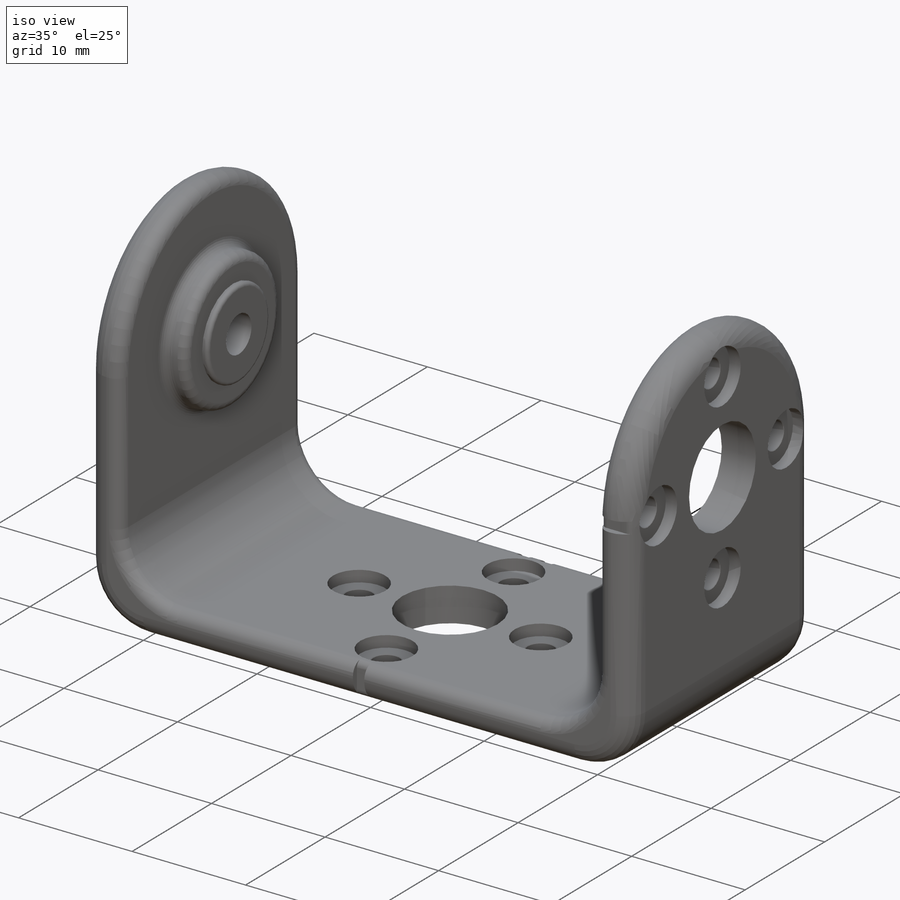
[diagram: iso view]
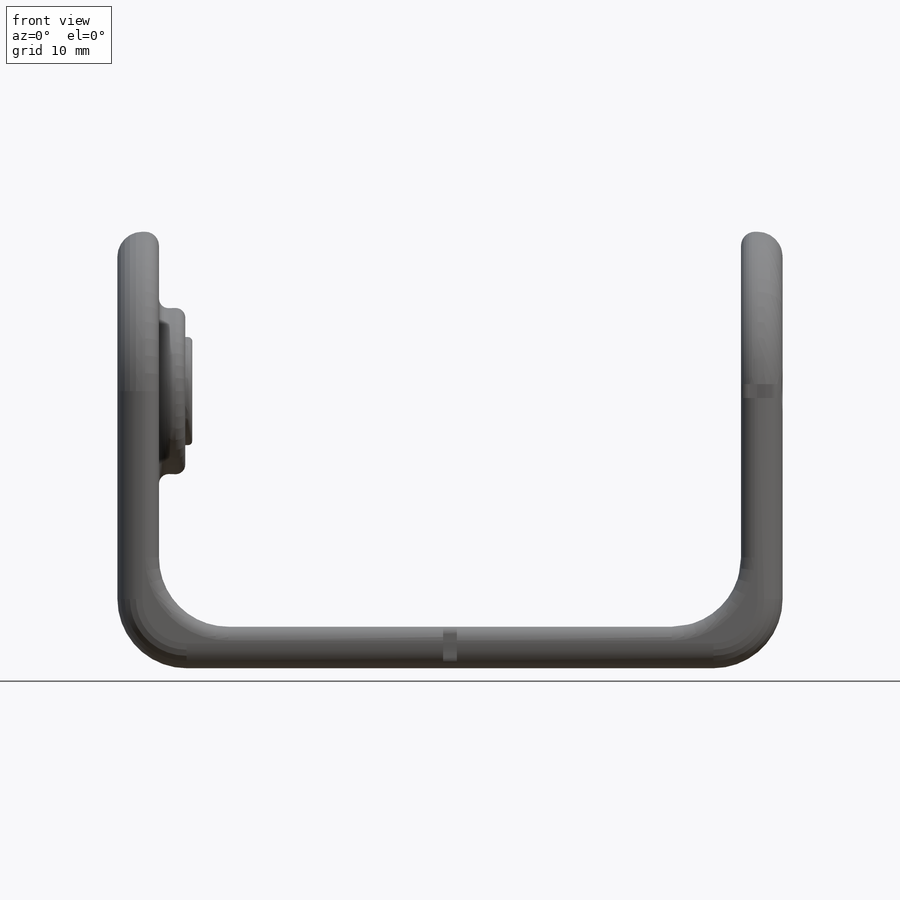
[diagram: front view]
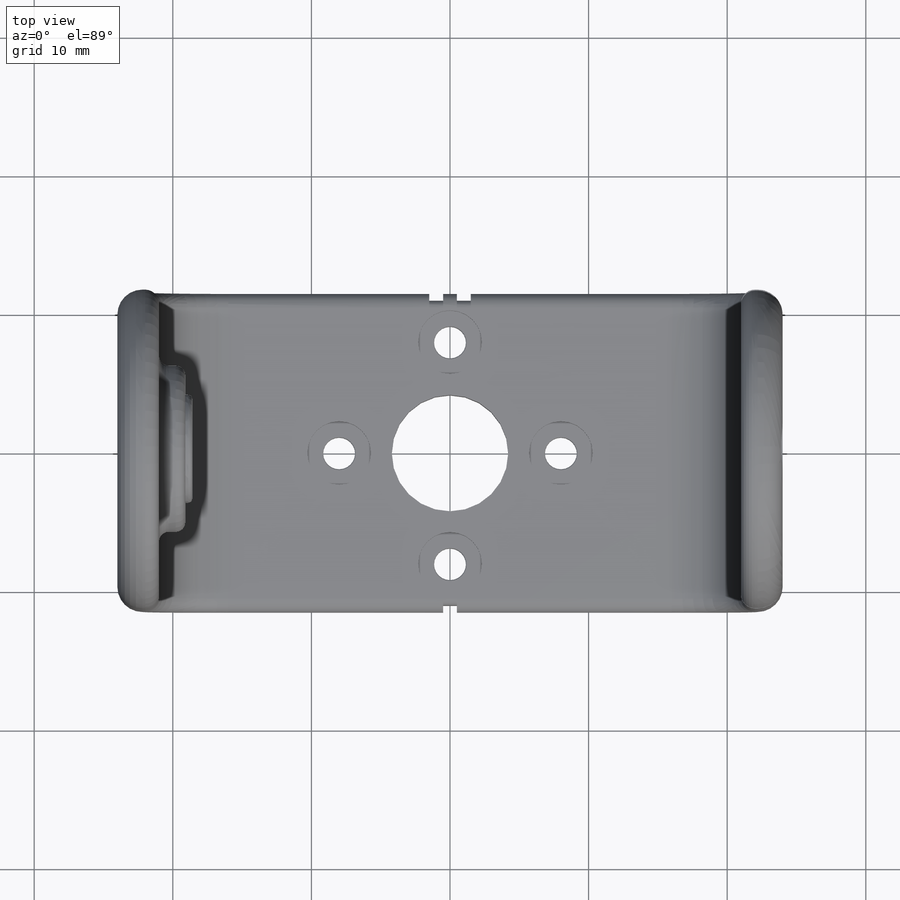
[diagram: top view]
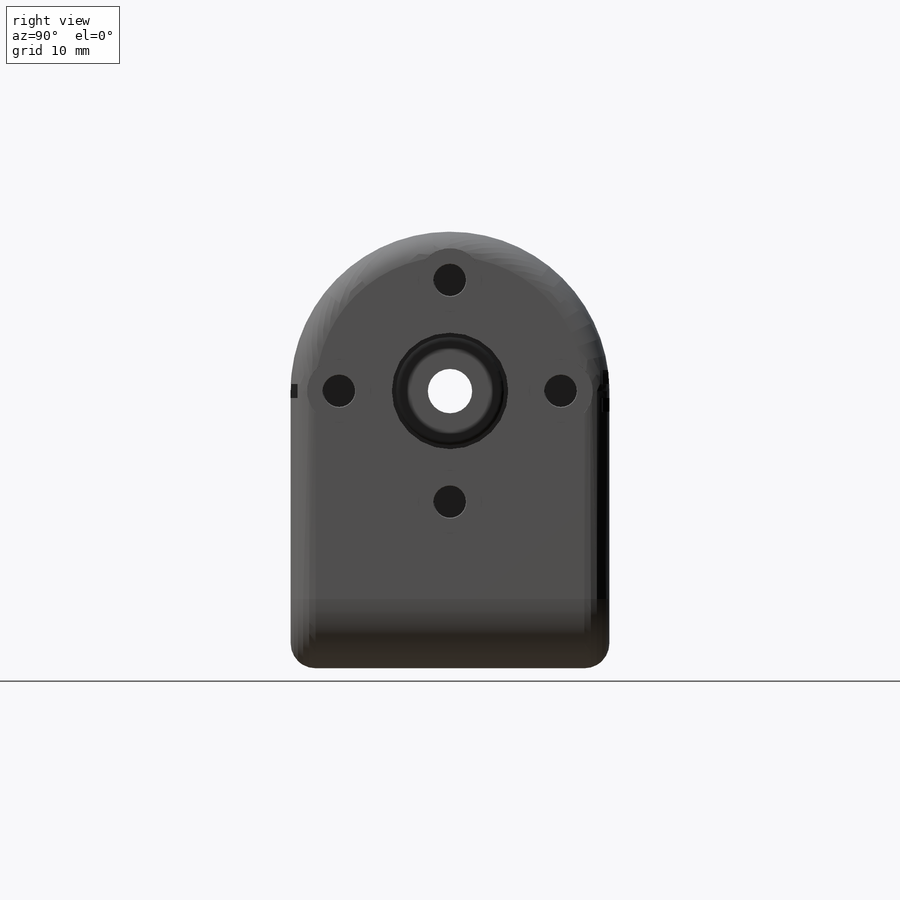
[diagram: right view]
SOLIDWORKS PART (.sldprt)
format: sldprt  version: not decoded by parser v0  size: 688,128 bytes
history: native  units: mm
features: sketch x15, fillet x6, plane x4, cut_extrude x4, extrude x3, hole x3, material x1, shell x1 (+14 scaffold rows collapsed; 2 parser-record rows omitted)
feature tree (53):
  scaffold x14  (default folders/planes/origin — collapsed)
  material  "Polyamide"
  sketch  "Sketch1"  dims[c1.D1=22.0mm c1.D2=16.0mm c1.D3=~1.537379mm c1.D4=2.0mm c1.D5=8.0mm c2.D3=4.0]
  plane  "head_z_interface"  Offset=20mm
  sketch  "Sketch2"  dims[c1.D1=22.0mm c1.D2=~1.960256mm c1.D3=2.0mm c1.D4=16.0mm c1.D5=8.0mm c2.D2=4.0]
  plane  "head_y_middle_plane"
  parser-record x2  (decoder bookkeeping rows leaked as tree rows — omitted from the tree; the rows remain in map.json)
  sketch  "Sketch3"  dims[D1=0.5mm D2=24.0mm]
  extrude  "Boss-Extrude1"  Depth=48mm
  shell  "Shell1"  Thickness=3mm
  fillet  "Fillet1"  Radius=5mm
  hole  "CBORE for M2 Hex Socket Head Cap Screw1"  Diameter=2.3mm Depth=3mm
  sketch  "Sketch5"
  sketch  "Sketch4"  dims[hole-wizard template sketch: 42 standard entries collapsed; hole parameters kept: c12.Thru Hole Depth=3.0mm c12.C'Bore Dia.=4.6mm c12.C'Bore Depth=1.0mm c12.Mid C'Sink Dia.=2.4mm c12.D6=~5.388154mm c12.Mid C'Sink Angle=90.0deg]
  sketch  "Sketch6"  dims[D1=0.2mm]
  cut_extrude  "Cut-Extrude1"  [1 undecoded]
  hole  "CBORE for M2 Hex Socket Head Cap Screw2"  Diameter=2.3mm Depth=3mm
  sketch  "Sketch8"
  sketch  "Sketch7"  dims[hole-wizard template sketch: 42 standard entries collapsed; hole parameters kept: c12.Thru Hole Depth=3.0mm c12.C'Bore Dia.=4.6mm c12.C'Bore Depth=1.0mm c12.Mid C'Sink Dia.=2.4mm c12.D6=~5.388154mm c12.Mid C'Sink Angle=90.0deg]
  sketch  "Sketch17"  dims[D1=0.2mm]
  cut_extrude  "Cut-Extrude6"  [1 undecoded]
  sketch  "Sketch9"  dims[D1=12.0mm]
  extrude  "Boss-Extrude2"  Depth=1.9mm
  sketch  "Sketch10"  dims[D1=7.8mm]
  extrude  "Boss-Extrude3"  Depth=0.5mm
  hole  "CBORE for M3 Hex Socket Head Cap Screw1"  Diameter=3.2mm Depth=5.4mm
  sketch  "Sketch13"
  sketch  "Sketch12"  dims[hole-wizard template sketch: 42 standard entries collapsed; hole parameters kept: c12.Thru Hole Depth=5.4mm c12.C'Bore Dia.=6.5mm c12.C'Bore Depth=1.0mm c12.Mid C'Sink Dia.=3.25mm c12.D6=~5.388154mm c12.Mid C'Sink Angle=90.0deg]
  plane  "Plane2"
  plane  "Plane3"
  fillet  "Fillet2"  Radius=1.8mm
  fillet  "Fillet3"  Radius=1mm
  sketch  "Sketch14"  dims[c1.D1=~1.208905mm c1.D2=~6.465016mm c2.D1=~7.516238mm c2.D2=~3.153666mm c3.D1=1.0mm]
  cut_extrude  "Cut-Extrude4"  Depth=0.5mm
  sketch  "Sketch15"  dims[c1.D1=~0.83789mm c1.D2=~2.970412mm c2.D1=~0.921679mm c2.D2=~2.970412mm c3.D1=1.0mm c3.D2=1.0mm c3.D3=3.0mm c3.D4=~8.178627mm c4.D3=1.0mm c4.D4=1.0mm]
  cut_extrude  "Cut-Extrude5"  Depth=0.5mm
  fillet  "Fillet5"  Radius=0.5mm
  fillet  "Fillet7"  Radius=0.7mm
  fillet  "Fillet8"  Radius=0.3mm
decode coverage: 27 of 32 modeling features carry decoded parameters
note: ~ marks probable driven/reference dimensions
note: 2 parameter values undecoded
note: suppression state not decoded; provenance and decode notes live in map.json
